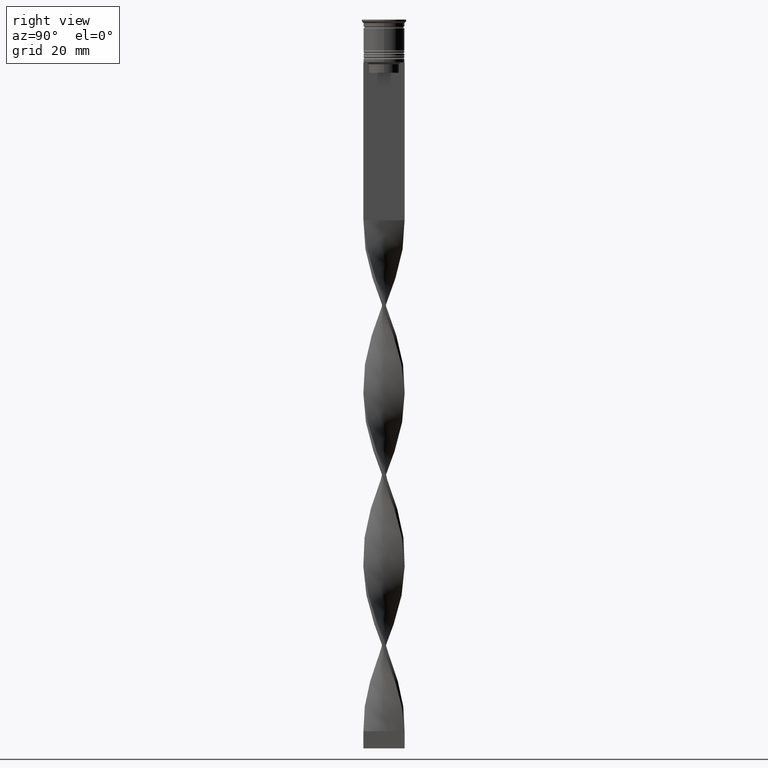
[diagram: clean part render]
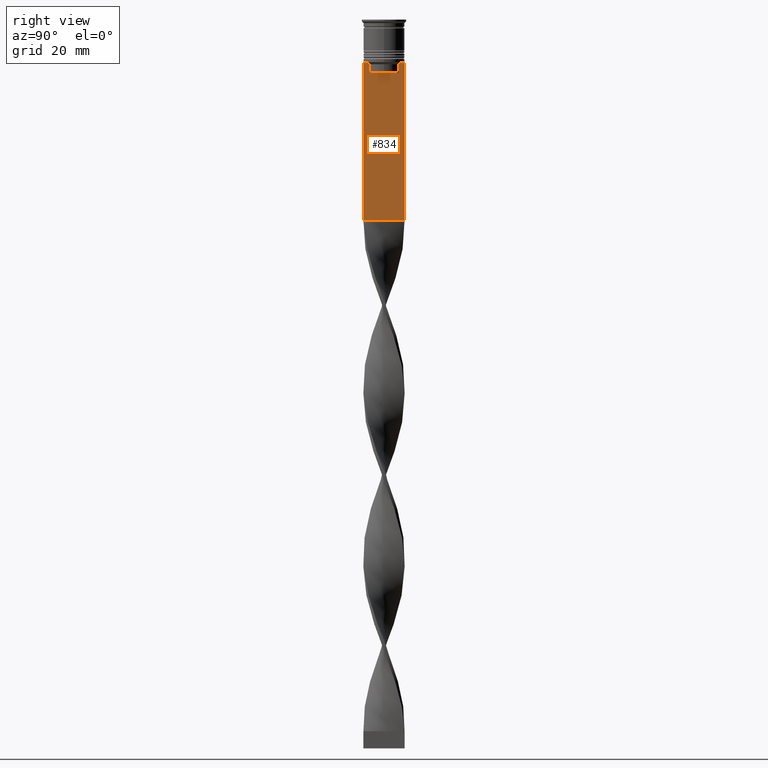
[diagram: same view with one face highlighted and labeled with its STEP entity id]
A machine part, right view. The second image highlights one B-rep face of the part: STEP entity #834.
In plain terms, the highlighted planar face has unit normal (-1, 0, 0).
Its self-contained STEP definition (entity closure, byte-faithful):
#34 = CARTESIAN_POINT ( 'NONE',  ( 0.5000000000000002220, -4.706831372970962768, -12.66671687695981774 ) ) ;
#62 = LINE ( 'NONE', #3712, #85 ) ;
#67 = VERTEX_POINT ( 'NONE', #349 ) ;
#85 = VECTOR ( 'NONE', #1572, 1000.000000000000000 ) ;
#91 = VECTOR ( 'NONE', #2670, 1000.000000000000000 ) ;
#119 = ORIENTED_EDGE ( 'NONE', *, *, #3287, .T. ) ;
#190 = DIRECTION ( 'NONE',  ( 0.000000000000000000, 1.000000000000000000, 0.000000000000000000 ) ) ;
#247 = VERTEX_POINT ( 'NONE', #3136 ) ;
#298 = LINE ( 'NONE', #2102, #91 ) ;
#300 = CARTESIAN_POINT ( 'NONE',  ( 0.5000000000000002220, -6.000000000000000000, -12.50000000000000000 ) ) ;
#308 = LINE ( 'NONE', #1495, #1579 ) ;
#345 = DIRECTION ( 'NONE',  ( 0.000000000000000000, -1.000000000000000000, 0.000000000000000000 ) ) ;
#349 = CARTESIAN_POINT ( 'NONE',  ( 0.5000000000000002220, -4.371498598878878816, -13.00000000000000178 ) ) ;
#393 = CARTESIAN_POINT ( 'NONE',  ( 0.5000000000000002220, -4.874423042781576676, -12.50000000000000000 ) ) ;
#401 = CARTESIAN_POINT ( 'NONE',  ( 0.5000000000000002220, 4.874423042781576676, -12.50000000000000000 ) ) ;
#405 = CARTESIAN_POINT ( 'NONE',  ( 0.5000000000000002220, -4.371498598878878816, -15.50000000000000000 ) ) ;
#520 = DIRECTION ( 'NONE',  ( 0.000000000000000000, 0.000000000000000000, 1.000000000000000000 ) ) ;
#610 = VERTEX_POINT ( 'NONE', #2333 ) ;
#655 = EDGE_LOOP ( 'NONE', ( #2118, #2742, #1064, #1897, #1105, #3044, #2921, #1592, #119, #1002, #795, #896 ) ) ;
#717 = CARTESIAN_POINT ( 'NONE',  ( 0.5000000000000002220, 4.539195634199896467, -12.83338923751318816 ) ) ;
#725 = VERTEX_POINT ( 'NONE', #881 ) ;
#795 = ORIENTED_EDGE ( 'NONE', *, *, #2063, .F. ) ;
#833 = CARTESIAN_POINT ( 'NONE',  ( 0.5000000000000002220, 5.878775382679627626, -12.50000000000000000 ) ) ;
#834 = ADVANCED_FACE ( 'NONE', ( #3452 ), #1107, .F. ) ;
#881 = CARTESIAN_POINT ( 'NONE',  ( 0.5000000000000002220, 4.371498598878878816, -13.00000000000000178 ) ) ;
#894 = AXIS2_PLACEMENT_3D ( 'NONE', #3498, #1031, #520 ) ;
#896 = ORIENTED_EDGE ( 'NONE', *, *, #1600, .T. ) ;
#928 = EDGE_CURVE ( 'NONE', #1973, #1950, #1679, .T. ) ;
#1002 = ORIENTED_EDGE ( 'NONE', *, *, #928, .T. ) ;
#1031 = DIRECTION ( 'NONE',  ( -1.000000000000000000, 0.000000000000000000, 0.000000000000000000 ) ) ;
#1064 = ORIENTED_EDGE ( 'NONE', *, *, #3210, .T. ) ;
#1087 = VERTEX_POINT ( 'NONE', #833 ) ;
#1105 = ORIENTED_EDGE ( 'NONE', *, *, #3563, .T. ) ;
#1107 = PLANE ( 'NONE',  #894 ) ;
#1116 = EDGE_CURVE ( 'NONE', #1087, #3372, #2337, .T. ) ;
#1144 = VECTOR ( 'NONE', #2052, 1000.000000000000000 ) ;
#1177 = DIRECTION ( 'NONE',  ( 0.000000000000000000, 0.000000000000000000, -1.000000000000000000 ) ) ;
#1230 = DIRECTION ( 'NONE',  ( 0.000000000000000000, 0.000000000000000000, -1.000000000000000000 ) ) ;
#1419 = VERTEX_POINT ( 'NONE', #1988 ) ;
#1495 = CARTESIAN_POINT ( 'NONE',  ( 0.5000000000000002220, 4.399999999999999467, -15.50000000000000000 ) ) ;
#1544 = CARTESIAN_POINT ( 'NONE',  ( 0.5000000000000002220, -4.371498598878878816, -13.00000000000000178 ) ) ;
#1572 = DIRECTION ( 'NONE',  ( 0.000000000000000000, -1.000000000000000000, 0.000000000000000000 ) ) ;
#1579 = VECTOR ( 'NONE', #3334, 1000.000000000000000 ) ;
#1591 = EDGE_CURVE ( 'NONE', #247, #2089, #308, .T. ) ;
#1592 = ORIENTED_EDGE ( 'NONE', *, *, #2363, .T. ) ;
#1600 = EDGE_CURVE ( 'NONE', #610, #1087, #2007, .T. ) ;
#1611 = CARTESIAN_POINT ( 'NONE',  ( 0.5000000000000002220, 4.706831415367288329, -12.66671683478479160 ) ) ;
#1679 = LINE ( 'NONE', #2880, #2277 ) ;
#1748 = CARTESIAN_POINT ( 'NONE',  ( 0.5000000000000002220, 4.874423042781576676, -12.50000000000000000 ) ) ;
#1857 = LINE ( 'NONE', #2478, #2398 ) ;
#1885 = CARTESIAN_POINT ( 'NONE',  ( 0.5000000000000002220, -4.539195586926423331, -12.83338928448044314 ) ) ;
#1897 = ORIENTED_EDGE ( 'NONE', *, *, #1591, .T. ) ;
#1950 = VERTEX_POINT ( 'NONE', #2533 ) ;
#1973 = VERTEX_POINT ( 'NONE', #3144 ) ;
#1988 = CARTESIAN_POINT ( 'NONE',  ( 0.5000000000000002220, -4.874423042781576676, -12.50000000000000000 ) ) ;
#2007 = LINE ( 'NONE', #2296, #2279 ) ;
#2052 = DIRECTION ( 'NONE',  ( 0.000000000000000000, -1.000000000000000000, 0.000000000000000000 ) ) ;
#2063 = EDGE_CURVE ( 'NONE', #610, #1950, #1857, .T. ) ;
#2089 = VERTEX_POINT ( 'NONE', #405 ) ;
#2102 = CARTESIAN_POINT ( 'NONE',  ( 0.5000000000000002220, -6.000000000000000000, -12.50000000000000000 ) ) ;
#2118 = ORIENTED_EDGE ( 'NONE', *, *, #1116, .T. ) ;
#2200 = CARTESIAN_POINT ( 'NONE',  ( 0.5000000000000002220, -6.000000000000000000, -0.4584054212077061097 ) ) ;
#2228 = CARTESIAN_POINT ( 'NONE',  ( 0.5000000000000002220, -5.878775382679627626, -12.50000000000000000 ) ) ;
#2277 = VECTOR ( 'NONE', #190, 1000.000000000000000 ) ;
#2279 = VECTOR ( 'NONE', #345, 1000.000000000000000 ) ;
#2296 = CARTESIAN_POINT ( 'NONE',  ( 0.5000000000000002220, -6.000000000000000000, -12.50000000000000000 ) ) ;
#2333 = CARTESIAN_POINT ( 'NONE',  ( 0.5000000000000002220, 6.000000000000000888, -12.50000000000000000 ) ) ;
#2337 = LINE ( 'NONE', #3838, #1144 ) ;
#2363 = EDGE_CURVE ( 'NONE', #3681, #3179, #62, .T. ) ;
#2398 = VECTOR ( 'NONE', #3056, 1000.000000000000000 ) ;
#2406 = VECTOR ( 'NONE', #1230, 1000.000000000000000 ) ;
#2467 = CARTESIAN_POINT ( 'NONE',  ( 0.5000000000000002220, -4.371498598878878816, 0.000000000000000000 ) ) ;
#2478 = CARTESIAN_POINT ( 'NONE',  ( 0.5000000000000002220, 6.000000000000000888, -0.4584054212077061097 ) ) ;
#2506 = LINE ( 'NONE', #2200, #2406 ) ;
#2533 = CARTESIAN_POINT ( 'NONE',  ( 0.5000000000000002220, 6.000000000000000888, -58.50000000000000000 ) ) ;
#2670 = DIRECTION ( 'NONE',  ( 0.000000000000000000, -1.000000000000000000, 0.000000000000000000 ) ) ;
#2698 = EDGE_CURVE ( 'NONE', #3372, #725, #3328, .T. ) ;
#2742 = ORIENTED_EDGE ( 'NONE', *, *, #2698, .T. ) ;
#2880 = CARTESIAN_POINT ( 'NONE',  ( 0.5000000000000002220, -6.000000000000000000, -58.50000000000000000 ) ) ;
#2921 = ORIENTED_EDGE ( 'NONE', *, *, #3486, .T. ) ;
#3044 = ORIENTED_EDGE ( 'NONE', *, *, #3261, .T. ) ;
#3056 = DIRECTION ( 'NONE',  ( 0.000000000000000000, 0.000000000000000000, -1.000000000000000000 ) ) ;
#3102 = DIRECTION ( 'NONE',  ( -0.000000000000000000, -0.000000000000000000, 1.000000000000000000 ) ) ;
#3136 = CARTESIAN_POINT ( 'NONE',  ( 0.5000000000000002220, 4.371498598878878816, -15.50000000000000000 ) ) ;
#3144 = CARTESIAN_POINT ( 'NONE',  ( 0.5000000000000002220, -5.999999999999999112, -58.50000000000000000 ) ) ;
#3179 = VERTEX_POINT ( 'NONE', #300 ) ;
#3210 = EDGE_CURVE ( 'NONE', #725, #247, #3324, .T. ) ;
#3261 = EDGE_CURVE ( 'NONE', #67, #1419, #3278, .T. ) ;
#3278 = B_SPLINE_CURVE_WITH_KNOTS ( 'NONE', 3,
 ( #1544, #1885, #34, #393 ),
 .UNSPECIFIED., .F., .F.,
 ( 4, 4 ),
 ( 0.02089901220910808308, 0.02161421017310286019 ),
 .UNSPECIFIED. ) ;
#3287 = EDGE_CURVE ( 'NONE', #3179, #1973, #2506, .T. ) ;
#3324 = LINE ( 'NONE', #3606, #3491 ) ;
#3328 = B_SPLINE_CURVE_WITH_KNOTS ( 'NONE', 3,
 ( #401, #1611, #717, #3728 ),
 .UNSPECIFIED., .F., .F.,
 ( 4, 4 ),
 ( 0.008336552452178421987, 0.009045730124312839626 ),
 .UNSPECIFIED. ) ;
#3334 = DIRECTION ( 'NONE',  ( 0.000000000000000000, -1.000000000000000000, 0.000000000000000000 ) ) ;
#3365 = LINE ( 'NONE', #2467, #3680 ) ;
#3372 = VERTEX_POINT ( 'NONE', #1748 ) ;
#3452 = FACE_OUTER_BOUND ( 'NONE', #655, .T. ) ;
#3486 = EDGE_CURVE ( 'NONE', #1419, #3681, #298, .T. ) ;
#3491 = VECTOR ( 'NONE', #1177, 1000.000000000000000 ) ;
#3498 = CARTESIAN_POINT ( 'NONE',  ( 0.5000000000000002220, -6.000000000000000000, -0.4584054212077061097 ) ) ;
#3563 = EDGE_CURVE ( 'NONE', #2089, #67, #3365, .T. ) ;
#3606 = CARTESIAN_POINT ( 'NONE',  ( 0.5000000000000002220, 4.371498598878878816, 0.000000000000000000 ) ) ;
#3680 = VECTOR ( 'NONE', #3102, 1000.000000000000000 ) ;
#3681 = VERTEX_POINT ( 'NONE', #2228 ) ;
#3712 = CARTESIAN_POINT ( 'NONE',  ( 0.5000000000000002220, -6.000000000000000000, -12.50000000000000000 ) ) ;
#3728 = CARTESIAN_POINT ( 'NONE',  ( 0.5000000000000002220, 4.371498598878878816, -13.00000000000000178 ) ) ;
#3838 = CARTESIAN_POINT ( 'NONE',  ( 0.5000000000000002220, -6.000000000000000000, -12.50000000000000000 ) ) ;